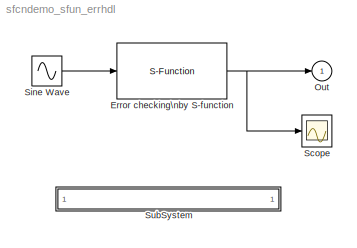
MODEL sfcndemo_sfun_errhdl
KIND model
BLOCK [S-Function] Error checking\nby S-function
  FunctionName = sfun_errhdl
  MaskDescription = An example of handling parameter checking in S-function.
  MaskDisplay = disp('Error\\nHandling');
  MaskEnableString = on
  MaskIconFrame = on
  MaskIconOpaque = on
  MaskIconRotate = none
  MaskIconUnits = autoscale
  MaskPromptString = Input parameter:
  MaskStyleString = edit
  MaskToolTipString = on
  MaskTunableValueString = on
  MaskType = S-function: sfun_errhdl
  MaskValueString = 2.3
  MaskVariables = param=@1;
  MaskVisibilityString = on
  Parameters = param
  Ports = [1, 1]
BLOCK [Outport] Out
  IconDisplay = Port number
  InitialOutput = 0
BLOCK [Scope] Scope
  DataFormat = Array
  NumInputPorts = 1
  Ports = [1]
  TickLabels = on
  TimeRange = 10
  YMax = 3
  YMin = -3
BLOCK [Sin] Sine Wave
  Ports = [0, 1]
  SampleTime = 0
BLOCK [SubSystem] SubSystem
  MaskDisplay = disp('matlabroot<path>');
  MaskIconFrame = on
  MaskIconOpaque = on
  MaskIconRotate = none
  MaskIconUnits = autoscale
  MinAlgLoopOccurrences = off
  OpenFcn = edit(fullfile(matlabroot,'simulink','src','sfun_errhdl.c'))
  Ports = []
  PropExecContextAcrossSSBoundary = on
  RTWSystemCode = Auto
  TreatAsAtomicUnit = off
NET Error checking\nby S-function:1 -> Out:1, Scope:1
LINE Sine Wave:1 -> Error checking\nby S-function:1
note: NET lines group one-source signal fan-out (src -> all destinations, sorted); 1:1 wires keep LINE
note: 1 file-system path scrubbed to <path> (not preserved elsewhere — flat text is the only slx artifact)
